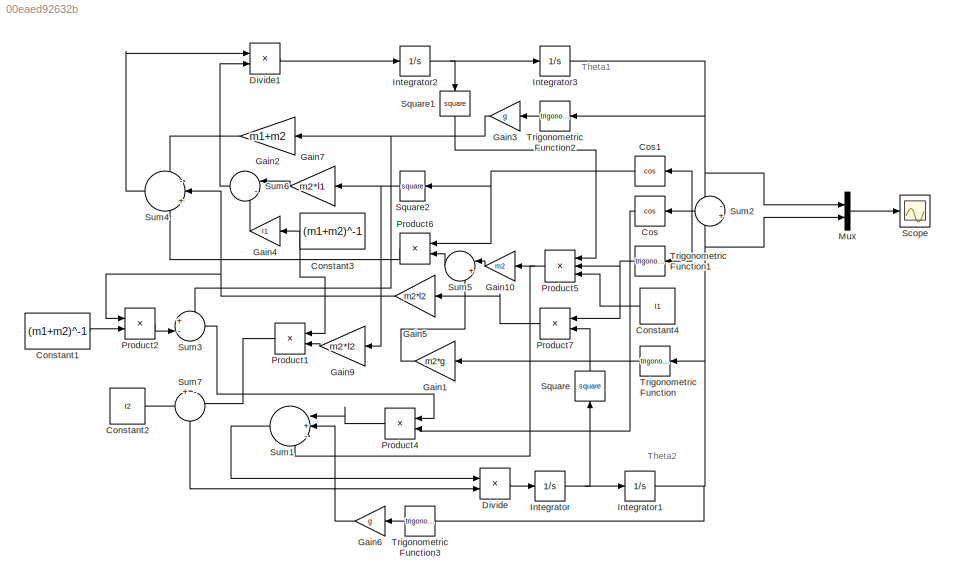
MODEL slx_00eaed92632b
KIND model
CONFIG AbsTol = auto
CONFIG EnableMultiTasking = off
CONFIG FixedStep = auto
CONFIG MaxStep = auto
CONFIG MinStep = auto
CONFIG RelTol = 1e-3
CONFIG SampleTimeConstraint = Unconstrained
CONFIG SolverName = ode23
CONFIG StartTime = 0.0
CONFIG StopTime = 150
BLOCK [Constant] Constant1
  Value = (m1+m2)^-1
BLOCK [Constant] Constant2
  Value = l2
BLOCK [Constant] Constant3
  NameLocation = top
  Value = (m1+m2)^-1
BLOCK [Constant] Constant4
  NameLocation = top
  Value = l1
BLOCK [Trigonometry] Cos
  NameLocation = top
  Operator = cos
BLOCK [Trigonometry] Cos1
  NameLocation = top
  Operator = cos
BLOCK [Product] Divide
  Inputs = */
BLOCK [Product] Divide1
  Inputs = */
BLOCK [Gain] Gain1
  Gain = m2*g
  NameLocation = top
BLOCK [Gain] Gain10
  Gain = m2
  NameLocation = top
BLOCK [Gain] Gain2
  Gain = m1+m2
  NameLocation = top
BLOCK [Gain] Gain3
  Gain = g
  NameLocation = top
BLOCK [Gain] Gain4
  Gain = l1
  NameLocation = top
BLOCK [Gain] Gain5
  Gain = m2*l2
  NameLocation = top
BLOCK [Gain] Gain6
  Gain = g
  NameLocation = top
BLOCK [Gain] Gain7
  Gain = m2*l1
  NameLocation = top
BLOCK [Gain] Gain9
  Gain = m2*l2
  NameLocation = top
BLOCK [Integrator] Integrator
  InitialCondition = 0.61086
BLOCK [Integrator] Integrator1
BLOCK [Integrator] Integrator2
BLOCK [Integrator] Integrator3
BLOCK [Mux] Mux
  DisplayOption = bar
  Inputs = 2
BLOCK [Product] Product1
  NameLocation = top
BLOCK [Product] Product2
BLOCK [Product] Product4
  NameLocation = top
BLOCK [Product] Product5
  Inputs = 3
  NameLocation = top
BLOCK [Product] Product6
  NameLocation = top
BLOCK [Product] Product7
  NameLocation = top
BLOCK [Scope] Scope
  Floating = off
  NumInputPorts = 1
  ScopeSpecificationString = Simulink.scopes.TimeScopeBlockCfg('CurrentConfiguration', extmgr.ConfigurationSet(extmgr.Configuration('Core','General UI',true),extmgr.Configuration('Core','Source UI',true),extmgr.Configuration('Sources','WiredSimulink',true),extmgr.Configuration('Visuals','Time Domain',true,'SerializedDisplays',{struct('MinYLimReal','-0.10337','MaxYLimReal','0.10558','YLabelReal','','MinYLimMag','0.00000','MaxY...<+1345ch>
BLOCK [Math] Square
  NameLocation = right
  Operator = square
BLOCK [Math] Square1
  NameLocation = left
  Operator = square
BLOCK [Math] Square2
  NameLocation = top
  Operator = square
BLOCK [Sum] Sum1
  Inputs = |+--
  NameLocation = top
BLOCK [Sum] Sum2
  Inputs = -+
  NameLocation = top
BLOCK [Sum] Sum3
  Inputs = +-|
BLOCK [Sum] Sum4
  Inputs = -|++
  NameLocation = top
BLOCK [Sum] Sum5
  Inputs = |++
  NameLocation = top
BLOCK [Sum] Sum6
  Inputs = |-+
  NameLocation = top
BLOCK [Sum] Sum7
  Inputs = +-
  NameLocation = left
BLOCK [Trigonometry] Trigonometric Function
  NameLocation = top
BLOCK [Trigonometry] Trigonometric Function1
  NameLocation = top
BLOCK [Trigonometry] Trigonometric Function2
  NameLocation = top
BLOCK [Trigonometry] Trigonometric Function3
  NameLocation = top
ANNOTATION (root): Theta1
ANNOTATION (root): Theta2
LINE Constant1:1 -> Product2:2
LINE Constant2:1 -> Sum7:1
NET Constant3:1 -> Gain4:1, Product1:1
LINE Constant4:1 -> Product5:3
NET Cos1:1 -> Product6:1, Square2:1
LINE Cos:1 -> Product4:2
LINE Divide1:1 -> Integrator2:1
LINE Divide:1 -> Integrator:1
LINE Gain10:1 -> Sum5:1
LINE Gain1:1 -> Sum5:2
LINE Gain2:1 -> Sum4:1
NET Gain3:1 -> Gain2:1, Sum3:1
LINE Gain4:1 -> Sum6:2
NET Gain5:1 -> Product2:1, Sum4:2
LINE Gain6:1 -> Sum1:2
LINE Gain7:1 -> Sum6:1
LINE Gain9:1 -> Product1:2
NET Integrator1:1 -> Mux:2, Sum2:2, Trigonometric Function3:1, Trigonometric Function:1
NET Integrator2:1 -> Integrator3:1, Square1:1
NET Integrator3:1 -> Mux:1, Sum2:1, Trigonometric Function2:1
NET Integrator:1 -> Integrator1:1, Square:1
LINE Mux:1 -> Scope:1
LINE Product1:1 -> Sum7:2
LINE Product2:1 -> Sum3:2
LINE Product4:1 -> Sum1:1
NET Product5:1 -> Gain10:1, Sum1:3
LINE Product6:1 -> Sum4:3
LINE Product7:1 -> Gain5:1
LINE Square1:1 -> Product5:1
NET Square2:1 -> Gain7:1, Gain9:1
LINE Square:1 -> Product7:2
LINE Sum1:1 -> Divide:1
NET Sum2:1 -> Cos1:1, Cos:1, Trigonometric Function1:1
LINE Sum3:1 -> Product4:1
LINE Sum4:1 -> Divide1:1
LINE Sum5:1 -> Product6:2
LINE Sum6:1 -> Divide1:2
LINE Sum7:1 -> Divide:2
NET Trigonometric Function1:1 -> Product5:2, Product7:1
LINE Trigonometric Function2:1 -> Gain3:1
LINE Trigonometric Function3:1 -> Gain6:1
LINE Trigonometric Function:1 -> Gain1:1
note: NET lines group one-source signal fan-out (src -> all destinations, sorted); 1:1 wires keep LINE
